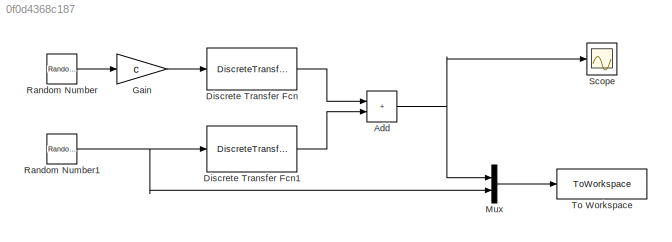
MODEL slx_0f0d4368c187
KIND model
CONFIG AbsTol = auto
CONFIG EnableMultiTasking = off
CONFIG FixedStep = 1
CONFIG MaxStep = auto
CONFIG MinStep = auto
CONFIG RelTol = 1e-3
CONFIG SampleTimeConstraint = Unconstrained
CONFIG SolverName = FixedStepDiscrete
CONFIG StartTime = 0.0
CONFIG StopTime = 500
BLOCK [Sum] Add
  IconShape = rectangular
BLOCK [DiscreteTransferFcn] Discrete Transfer Fcn
  Denominator = [Wd.den{1}]
  InputPortMap = u0
BLOCK [DiscreteTransferFcn] Discrete Transfer Fcn1
  Denominator = [Wd.den{1}]
  InputPortMap = u0
  Numerator = [Wd.num{1}]
BLOCK [Gain] Gain
  Gain = c
BLOCK [Mux] Mux
  DisplayOption = bar
  Inputs = 2
BLOCK [RandomNumber] Random Number
  SampleTime = 1
  Seed = 1
BLOCK [RandomNumber] Random Number1
  SampleTime = 1
BLOCK [Scope] Scope
  Floating = off
  NumInputPorts = 1
  ScopeSpecificationString = Simulink.scopes.TimeScopeBlockCfg('CurrentConfiguration', extmgr.ConfigurationSet(extmgr.Configuration('Core','General UI',true),extmgr.Configuration('Core','Source UI',true),extmgr.Configuration('Sources','WiredSimulink',true),extmgr.Configuration('Visuals','Time Domain',true,'SerializedDisplays',{struct('MinYLimReal','-7.6427','MaxYLimReal','5.55285','YLabelReal','','MinYLimMag','0.00000','MaxYL...<+1349ch>
BLOCK [ToWorkspace] To Workspace
  FixptAsFi = on
  MaxDataPoints = inf
  SampleTime = -1
  SaveFormat = Structure With Time
  VariableName = simout
NET Add:1 -> Mux:1, Scope:1
LINE Discrete Transfer Fcn1:1 -> Add:2
LINE Discrete Transfer Fcn:1 -> Add:1
LINE Gain:1 -> Discrete Transfer Fcn:1
LINE Mux:1 -> To Workspace:1
NET Random Number1:1 -> Discrete Transfer Fcn1:1, Mux:2
LINE Random Number:1 -> Gain:1
note: NET lines group one-source signal fan-out (src -> all destinations, sorted); 1:1 wires keep LINE
